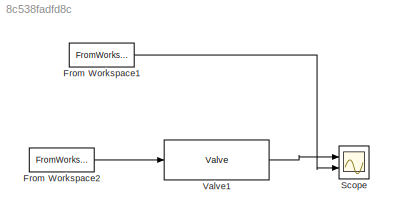
MODEL slx_8c538fadfd8c
KIND model
CONFIG AbsTol = auto
CONFIG EnableMultiTasking = off
CONFIG FixedStep = auto
CONFIG MaxStep = auto
CONFIG MinStep = auto
CONFIG RelTol = 1e-3
CONFIG SampleTimeConstraint = Unconstrained
CONFIG SolverName = VariableStepAuto
CONFIG StartTime = 0.0
CONFIG StopTime = 110
BLOCK [FromWorkspace] From Workspace1
  SampleTime = 1
  VariableName = testData(:,[1,12])
BLOCK [FromWorkspace] From Workspace2
  SampleTime = 1
  VariableName = testData(:,[1,13])
BLOCK [Scope] Scope
  Floating = off
  NumInputPorts = 2
  Ports = [2]
  ScopeSpecificationString = Simulink.scopes.TimeScopeBlockCfg('CurrentConfiguration', extmgr.ConfigurationSet(extmgr.Configuration('Core','General UI',true),extmgr.Configuration('Core','Source UI',true),extmgr.Configuration('Sources','WiredSimulink',true,'DataLogging',true),extmgr.Configuration('Visuals','Time Domain',true,'SerializedDisplays',{struct('MinYLimReal','-4.18887','MaxYLimReal','45.08987','YLabelReal','','MinYLim...<+1396ch>
BLOCK [Reference] Valve1  REF=IMT_Library/Valve
  Ports = [1, 1]
  SourceBlock = IMT_Library/Valve
  SourceProductName = Imitation
LINE From Workspace1:1 -> Scope:2
LINE From Workspace2:1 -> Valve1:1
LINE Valve1:1 -> Scope:1
